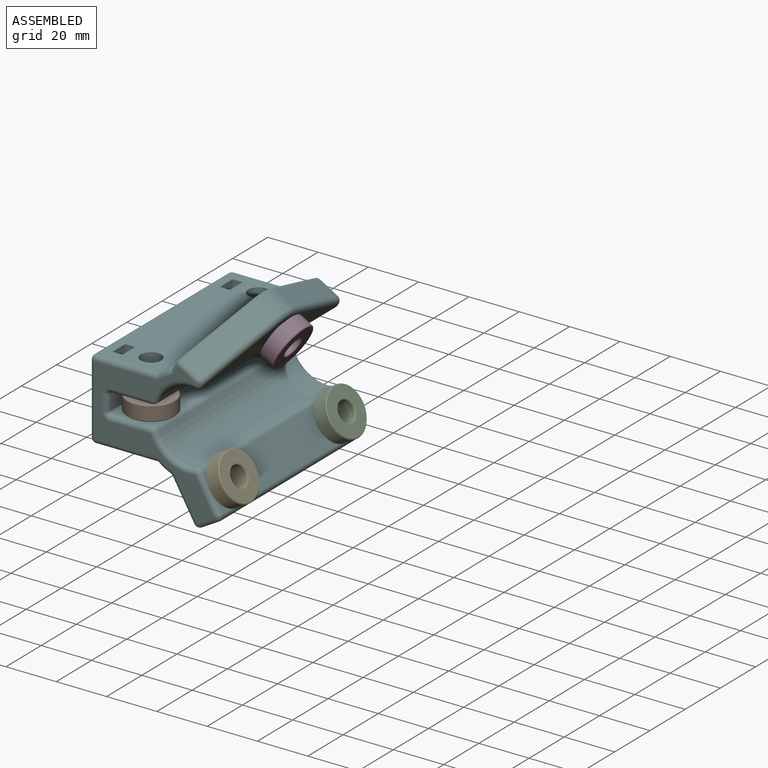
[diagram: assembled view]
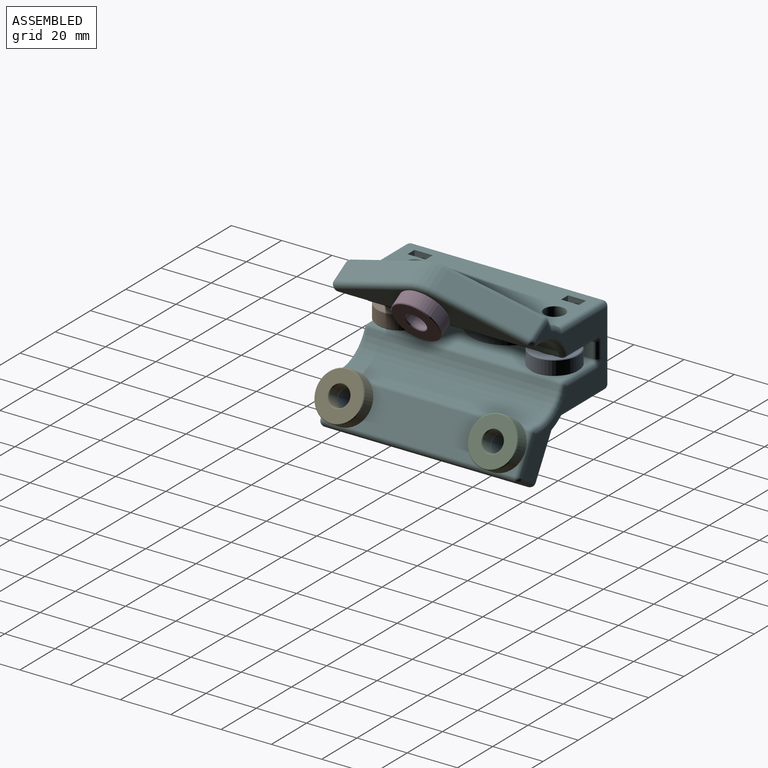
[diagram: assembled view, second angle]
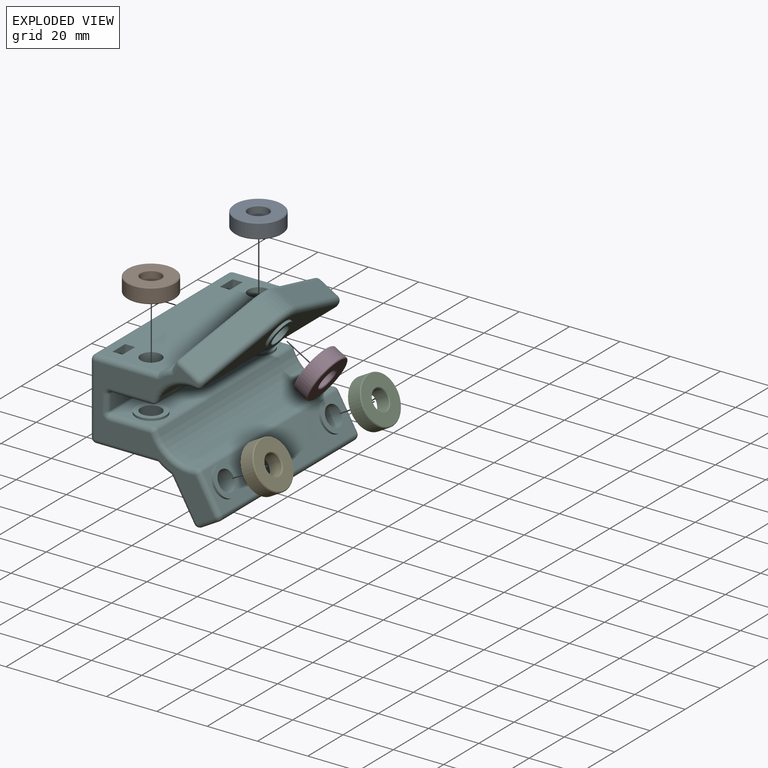
[diagram: exploded view]
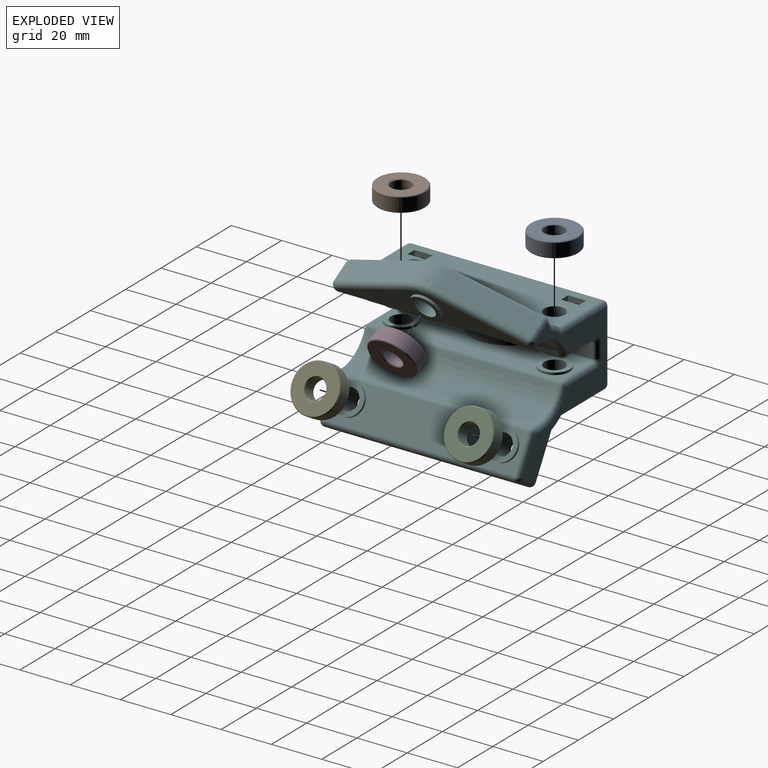
[diagram: exploded view, second angle]
ASSEMBLY  parts=6 mates=5
PART A: 8 faces, bbox 19x19x6 mm
  f0: cylinder r=4mm len=8mm, axis (0,0,-1), area 135.7mm2, adj f4,f6
  f1: cylinder r=9.5mm len=19mm, axis (0,0,-1), area 322.3mm2, adj f5,f7
  f2: plane 18.4x18.4mm, normal (0,0,1), area 207.8mm2, adj f6,f7
  f3: plane 18.4x18.4mm, normal (0,0,-1), area 207.8mm2, adj f4,f5
  f4: cone r=4.3mm half-angle=45deg, axis (0,0,-1), area 11.1mm2, adj f0,f3
  f5: cone r=9.5mm half-angle=45deg, axis (0,0,1), area 24.9mm2, adj f1,f3
  f6: cone r=4mm half-angle=45deg, axis (0,0,1), area 11.1mm2, adj f0,f2
  f7: cone r=9.2mm half-angle=45deg, axis (0,0,-1), area 24.9mm2, adj f1,f2
PART B: same geometry as A
PART C: same geometry as A
PART D: same geometry as A
PART E: same geometry as A
PART F: 155 faces, bbox 70.9x80x51.6 mm
  f0: plane 54.37x47.54mm, normal (0,1,0), area 620.3mm2, adj f104,f108,f112,f114,f115,f117,f118,f119
  f1: plane 54.37x47.54mm, normal (0,-1,0), area 620.3mm2, adj f83,f84,f86,f87,f88,f89,f90,f91
  f2: plane 76x28mm, normal (0,0,1), area 2071.7mm2, adj f67,f68,f73,f74,f97,f124,f144,f147
  f3: plane 76x24.66mm, normal (-1,0,0), area 1710.7mm2, adj f14,f24,f25,f55,f56,f57,f58,f60
  f4: plane 76x24.71mm, normal (1,0,0), area 1714.8mm2, adj f13,f22,f23,f45,f46,f47,f48,f50
  f5: plane 24.58x6mm, normal (0,0,-1), area 147.5mm2, adj f6,f31,f32,f88
  f6: cylinder r=1mm len=25.13mm, axis (0,-1,0), area 38.9mm2, adj f5,f8,f32,f90
  f7: cylinder r=1mm len=25.13mm, axis (0,1,0), area 38.9mm2, adj f9,f17,f32,f119
  f8: plane 76x16.13mm, normal (1,0,0), area 866.6mm2, adj f6,f27,f30,f32,f41,f43,f92,f112
  f9: plane 76x16.13mm, normal (-1,0,0), area 866.6mm2, adj f7,f28,f31,f32,f37,f39,f84,f121
  f10: plane 76x15.34mm, normal (-0.5,0,0.87), area 1240.4mm2, adj f14,f20,f21,f105,f113,f118
  f11: plane 76x13.11mm, normal (0.5,0,-0.87), area 924.3mm2, adj f26,f33,f35,f100,f107,f108
  f12: plane 76x14.41mm, normal (0.5,0,0.87), area 734.6mm2, adj f13,f77,f91,f130,f134,f135,f136
  f13: cylinder r=20.5mm len=76mm, axis (0,1,0), area 472.9mm2, adj f4,f12,f93,f128
  f14: cylinder r=20.5mm len=76mm, axis (0,1,0), area 472.9mm2, adj f3,f10,f101,f120
  f15: plane 76x6.93mm, normal (-0.87,0,-0.5), area 608mm2, adj f106,f107,f113,f114
  f16: cylinder r=14.5mm len=76mm, axis (0,1,0), area 1486.2mm2, adj f26,f27,f96,f104
  f17: plane 24.58x6mm, normal (0,0,-1), area 147.5mm2, adj f7,f30,f32,f117
  f18: cylinder r=14.5mm len=76mm, axis (0,1,0), area 1489.3mm2, adj f28,f29,f83,f125
  f19: plane 76x12.21mm, normal (-0.5,0,-0.87), area 481.5mm2, adj f29,f78,f87,f129,f139,f140,f141
  f20: cylinder r=4.1mm len=15.36mm, axis (-0.5,0,0.87), area 334.9mm2, adj f10,f36
  f21: cylinder r=4.1mm len=15.36mm, axis (-0.5,0,0.87), area 334.9mm2, adj f10,f34
  f22: cylinder r=4.1mm len=12.85mm, axis (1,0,0), area 331mm2, adj f4,f40
  f23: cylinder r=4.1mm len=12.85mm, axis (1,0,0), area 331mm2, adj f4,f38
  f24: cylinder r=4.1mm len=12.85mm, axis (1,0,0), area 331mm2, adj f3,f44
  f25: cylinder r=4.1mm len=12.85mm, axis (1,0,0), area 331mm2, adj f3,f42
  f26: cylinder r=2mm len=76mm, axis (0,1,0), area 182mm2, adj f11,f16,f98,f103
  f27: cylinder r=2mm len=76mm, axis (0,1,0), area 182.2mm2, adj f8,f16,f94,f109
  f28: cylinder r=2mm len=76mm, axis (0,1,0), area 182.2mm2, adj f9,f18,f82,f123
  f29: cylinder r=2mm len=76mm, axis (0,1,0), area 182.4mm2, adj f18,f19,f85,f127
  f30: cylinder r=1mm len=25.13mm, axis (0,-1,0), area 38.9mm2, adj f8,f17,f32,f115
  f31: cylinder r=1mm len=25.13mm, axis (0,1,0), area 38.9mm2, adj f5,f9,f32,f86
  f32: cylinder r=15mm len=26.84mm, axis (1,0,0), area 264.9mm2, adj f5,f6,f7,f8,f9,f17,f30,f31
  f33: cylinder r=6mm len=12mm, axis (-0.5,0,0.87), area 37.7mm2, adj f11,f34
  f34: plane 12x10.39mm, normal (0.5,0,-0.87), area 60.3mm2, adj f21,f33
  f35: cylinder r=6mm len=12mm, axis (-0.5,0,0.87), area 37.7mm2, adj f11,f36
  f36: plane 12x10.39mm, normal (0.5,0,-0.87), area 60.3mm2, adj f20,f35
  f37: cylinder r=6mm len=12mm, axis (1,0,0), area 31.2mm2, adj f9,f38
  f38: plane 12x12mm, normal (-1,0,0), area 60.3mm2, adj f23,f37
  f39: cylinder r=6mm len=12mm, axis (1,0,0), area 31.2mm2, adj f9,f40
  f40: plane 12x12mm, normal (-1,0,0), area 60.3mm2, adj f22,f39
  f41: cylinder r=6mm len=12mm, axis (-1,0,0), area 32.9mm2, adj f8,f42
  f42: plane 12x12mm, normal (1,0,0), area 60.3mm2, adj f25,f41
  f43: cylinder r=6mm len=12mm, axis (-1,0,0), area 32.9mm2, adj f8,f44
  f44: plane 12x12mm, normal (1,0,0), area 60.3mm2, adj f24,f43
  f45: plane 8x4mm, normal (0,1,0), area 32mm2, adj f4,f46,f48,f49
  f46: plane 8x7.2mm, normal (0,0,1), area 43.4mm2, adj f4,f45,f47,f49,f75
  f47: plane 8x4mm, normal (0,-1,0), area 32mm2, adj f4,f46,f48,f49
  f48: plane 8x7.2mm, normal (0,0,-1), area 43.4mm2, adj f4,f45,f47,f49,f74
  f49: plane 7.2x4mm, normal (1,0,0), area 28.8mm2, adj f45,f46,f47,f48
  f50: plane 8x7.2mm, normal (0,0,-1), area 43.4mm2, adj f4,f51,f53,f54,f73
  f51: plane 8x4mm, normal (0,1,0), area 32mm2, adj f4,f50,f52,f54
  f52: plane 8x7.2mm, normal (0,0,1), area 43.4mm2, adj f4,f51,f53,f54,f72
  f53: plane 8x4mm, normal (0,-1,0), area 32mm2, adj f4,f50,f52,f54
  f54: plane 7.2x4mm, normal (1,0,0), area 28.8mm2, adj f50,f51,f52,f53
  f55: plane 8x7.2mm, normal (0,0,1), area 43.4mm2, adj f3,f56,f58,f59,f69
  f56: plane 8x4mm, normal (0,1,0), area 32mm2, adj f3,f55,f57,f59
  f57: plane 8x7.2mm, normal (0,0,-1), area 43.4mm2, adj f3,f56,f58,f59,f68
  f58: plane 8x4mm, normal (0,-1,0), area 32mm2, adj f3,f55,f57,f59
  f59: plane 7.2x4mm, normal (-1,0,0), area 28.8mm2, adj f55,f56,f57,f58
  f60: plane 8x7.2mm, normal (0,0,-1), area 43.4mm2, adj f3,f61,f63,f64,f67
  f61: plane 8x4mm, normal (0,-1,0), area 32mm2, adj f3,f60,f62,f64
  f62: plane 8x7.2mm, normal (0,0,1), area 43.4mm2, adj f3,f61,f63,f64,f66
  f63: plane 8x4mm, normal (0,1,0), area 32mm2, adj f3,f60,f62,f64
  f64: plane 7.2x4mm, normal (-1,0,0), area 28.8mm2, adj f60,f61,f62,f63
  f65: plane 4.25x4.25mm, normal (0,0,1), area 14.2mm2, adj f66
  f66: cylinder r=2.12mm len=4.25mm, axis (0,0,1), area 53.4mm2, adj f62,f65
  f67: cylinder r=2.12mm len=5mm, axis (0,0,1), area 66.8mm2, adj f2,f60,f147
  f68: cylinder r=2.12mm len=5mm, axis (0,0,1), area 66.8mm2, adj f2,f57,f147
  f69: cylinder r=2.12mm len=4.25mm, axis (0,0,1), area 53.4mm2, adj f55,f70
  f70: plane 4.25x4.25mm, normal (0,0,1), area 14.2mm2, adj f69
  f71: plane 4.25x4.25mm, normal (0,0,1), area 14.2mm2, adj f72
  f72: cylinder r=2.12mm len=4.25mm, axis (0,0,1), area 53.4mm2, adj f52,f71
  f73: cylinder r=2.12mm len=5mm, axis (0,0,1), area 66.8mm2, adj f2,f50,f144
  f74: cylinder r=2.12mm len=5mm, axis (0,0,1), area 66.8mm2, adj f2,f48,f144
  f75: cylinder r=2.12mm len=4.25mm, axis (0,0,1), area 53.4mm2, adj f46,f76
  f76: plane 4.25x4.25mm, normal (0,0,1), area 14.2mm2, adj f75
  f77: cylinder r=4.1mm len=15.36mm, axis (0.5,0,0.87), area 334.9mm2, adj f12,f79
  f78: cylinder r=6mm len=12mm, axis (0.5,0,0.87), area 37.7mm2, adj f19,f79
  f79: plane 12x10.39mm, normal (-0.5,0,-0.87), area 60.3mm2, adj f77,f78
  f80: plane 33.44x14.86mm, normal (0.81,-0.35,-0.47), area 285.7mm2, adj f89,f132,f134,f139
  f81: plane 33.44x14.86mm, normal (0.81,0.35,-0.47), area 285.7mm2, adj f131,f132,f136,f141
  f82: sphere r=2mm, area 4.8mm2, adj f28,f83,f84
  f83: torus R=16.5mm, axis (0,-1,0), area 64.6mm2, adj f1,f18,f82,f85
  f84: cylinder r=2mm len=16.13mm, axis (0,0,1), area 50.7mm2, adj f1,f9,f82,f86
  f85: sphere r=2mm, area 4.8mm2, adj f29,f83,f87
  f86: torus R=3mm, axis (0,-1,0), area 8.5mm2, adj f1,f31,f84,f88
  f87: cylinder r=2mm len=2.1mm, axis (-0.87,0,0.5), area 2.3mm2, adj f1,f19,f85,f138
  f88: cylinder r=2mm len=6mm, axis (-1,0,0), area 18.8mm2, adj f1,f5,f86,f90
  f89: cylinder r=2mm len=7.86mm, axis (-0.5,0,-0.87), area 19.4mm2, adj f1,f80,f133,f138
  f90: torus R=3mm, axis (0,-1,0), area 8.5mm2, adj f1,f6,f88,f92
  f91: cylinder r=2mm len=4.46mm, axis (0.87,0,-0.5), area 11.1mm2, adj f1,f12,f93,f133
  f92: cylinder r=2mm len=16.13mm, axis (0,0,-1), area 50.7mm2, adj f1,f8,f90,f94
  f93: torus R=18.5mm, axis (0,-1,0), area 20.4mm2, adj f1,f13,f91,f95
  f94: sphere r=2mm, area 4.8mm2, adj f27,f92,f96
  f95: cylinder r=2mm len=25.43mm, axis (0,0,-1), area 78.4mm2, adj f1,f4,f93,f145
  f96: torus R=16.5mm, axis (0,-1,0), area 64.5mm2, adj f1,f16,f94,f98
  f97: cylinder r=2mm len=28mm, axis (1,0,0), area 88mm2, adj f1,f2,f145,f148
  f98: sphere r=2mm, area 4.8mm2, adj f26,f96,f100
  f99: cylinder r=2mm len=25.38mm, axis (0,0,1), area 78.3mm2, adj f1,f3,f101,f148
  f100: cylinder r=2mm len=14.11mm, axis (-0.87,0,-0.5), area 47.6mm2, adj f1,f11,f98,f102
  f101: torus R=18.5mm, axis (0,-1,0), area 20.4mm2, adj f1,f14,f99,f105
  f102: sphere r=2mm, area 6.3mm2, adj f100,f106,f107
  f103: sphere r=2mm, area 4.8mm2, adj f26,f104,f108
  f104: torus R=16.5mm, axis (0,-1,0), area 64.5mm2, adj f0,f16,f103,f109
  f105: cylinder r=2mm len=16.96mm, axis (0.87,0,0.5), area 56.5mm2, adj f1,f10,f101,f110
  f106: cylinder r=2mm len=7.93mm, axis (-0.5,0,0.87), area 25.1mm2, adj f1,f15,f102,f110
  f107: cylinder r=2mm len=76mm, axis (0,1,0), area 238.8mm2, adj f11,f15,f102,f111
  f108: cylinder r=2mm len=14.11mm, axis (0.87,0,0.5), area 47.6mm2, adj f0,f11,f103,f111
  f109: sphere r=2mm, area 4.8mm2, adj f27,f104,f112
  f110: sphere r=2mm, area 6.3mm2, adj f105,f106,f113
  f111: sphere r=2mm, area 6.3mm2, adj f107,f108,f114
  f112: cylinder r=2mm len=16.13mm, axis (0,0,1), area 50.7mm2, adj f0,f8,f109,f115
  f113: cylinder r=2mm len=76mm, axis (0,1,0), area 238.8mm2, adj f10,f15,f110,f116
  f114: cylinder r=2mm len=7.93mm, axis (0.5,0,-0.87), area 25.1mm2, adj f0,f15,f111,f116
  f115: torus R=3mm, axis (0,-1,0), area 8.5mm2, adj f0,f30,f112,f117
  f116: sphere r=2mm, area 6.3mm2, adj f113,f114,f118
  f117: cylinder r=2mm len=6mm, axis (1,0,0), area 18.8mm2, adj f0,f17,f115,f119
  f118: cylinder r=2mm len=16.96mm, axis (-0.87,0,-0.5), area 56.5mm2, adj f0,f10,f116,f120
  f119: torus R=3mm, axis (0,-1,0), area 8.5mm2, adj f0,f7,f117,f121
  f120: torus R=18.5mm, axis (0,-1,0), area 20.4mm2, adj f0,f14,f118,f122
  f121: cylinder r=2mm len=16.13mm, axis (0,0,-1), area 50.7mm2, adj f0,f9,f119,f123
  f122: cylinder r=2mm len=25.38mm, axis (0,0,-1), area 78.3mm2, adj f0,f3,f120,f146
  f123: sphere r=2mm, area 4.8mm2, adj f28,f121,f125
  f124: cylinder r=2mm len=28mm, axis (-1,0,0), area 88mm2, adj f0,f2,f143,f146
  f125: torus R=16.5mm, axis (0,-1,0), area 64.6mm2, adj f0,f18,f123,f127
  f126: cylinder r=2mm len=25.43mm, axis (0,0,1), area 78.4mm2, adj f0,f4,f128,f143
  f127: sphere r=2mm, area 4.8mm2, adj f29,f125,f129
  f128: torus R=18.5mm, axis (0,-1,0), area 20.4mm2, adj f0,f13,f126,f130
  f129: cylinder r=2mm len=2.1mm, axis (0.87,0,-0.5), area 2.3mm2, adj f0,f19,f127,f142
  f130: cylinder r=2mm len=4.46mm, axis (-0.87,0,0.5), area 11.1mm2, adj f0,f12,f128,f137
  f131: cylinder r=2mm len=7.86mm, axis (0.5,0,0.87), area 19.4mm2, adj f0,f81,f137,f142
  f132: cylinder r=15mm len=10.53mm, axis (0.5,0,0.87), area 86.1mm2, adj f80,f81,f135,f140
  f133: sphere r=2mm, area 4.8mm2, adj f89,f91,f134
  f134: cylinder r=2mm len=34.14mm, axis (0.3,0.94,-0.18), area 112.2mm2, adj f12,f80,f133,f135
  f135: torus R=13mm, axis (0.5,0,0.87), area 32.2mm2, adj f12,f132,f134,f136
  f136: cylinder r=2mm len=34.14mm, axis (-0.3,0.94,0.18), area 112.2mm2, adj f12,f81,f135,f137
  f137: sphere r=2mm, area 4.8mm2, adj f130,f131,f136
  f138: sphere r=2mm, area 4.8mm2, adj f87,f89,f139
  f139: cylinder r=2mm len=34.14mm, axis (-0.3,-0.94,0.18), area 112.2mm2, adj f19,f80,f138,f140
  f140: torus R=13mm, axis (0.5,0,0.87), area 32.2mm2, adj f19,f132,f139,f141
  f141: cylinder r=2mm len=34.14mm, axis (0.3,-0.94,-0.18), area 112.2mm2, adj f19,f81,f140,f142
  f142: sphere r=2mm, area 4.8mm2, adj f129,f131,f141
  f143: sphere r=2mm, area 6.3mm2, adj f124,f126,f144
  f144: cylinder r=2mm len=76mm, axis (0,1,0), area 238.5mm2, adj f2,f4,f73,f74,f143,f145
  f145: sphere r=2mm, area 6.3mm2, adj f95,f97,f144
  f146: sphere r=2mm, area 6.3mm2, adj f122,f124,f147
  f147: cylinder r=2mm len=76mm, axis (0,1,0), area 238.5mm2, adj f2,f3,f67,f68,f146,f148
  f148: sphere r=2mm, area 6.3mm2, adj f97,f99,f147
  f149: cylinder r=12.5mm len=21.11mm, axis (1,0,0), area 200mm2, adj f150,f151,f152,f153,f154
  f150: cylinder r=1mm len=21.11mm, axis (0,1,0), area 32.4mm2, adj f149,f152,f153
  f151: cylinder r=1mm len=21.11mm, axis (0,-1,0), area 32.4mm2, adj f149,f152,f154
  f152: plane 21.11x6mm, normal (0,0,-1), area 126.6mm2, adj f149,f150,f151
  f153: plane 19.7x4.8mm, normal (-1,0,0), area 66mm2, adj f149,f150
  f154: plane 19.7x4.8mm, normal (1,0,0), area 66mm2, adj f149,f151
PLACE A t=(-12.51,69.79,-5.54)mm
PLACE B t=(-12.51,8.79,-5.54)mm
PLACE C rot(axis=(0,-1,0),120deg) t=(22.62,69.79,-20.01)mm
PLACE D rot(axis=(0,-1,0),60deg) t=(22.68,39.29,14.62)mm
PLACE E rot(axis=(0,-1,0),120deg) t=(22.62,8.79,-20.01)mm
PLACE F rot(axis=(0,-1,0),90deg) t=(37.72,39.29,-67.6)mm
MATE fastened F.f22 <-> A.f0  axis (0,0,-1) through (-12.51,69.79,0.46)mm
MATE fastened F.f23 <-> B.f1  axis (0,0,-1) through (-12.51,8.79,0.46)mm
MATE fastened F.f21 <-> C.f1  axis (0.87,0,0.5) through (17.42,69.79,-23.01)mm
MATE fastened F.f77 <-> D.f1  axis (0.87,0,-0.5) through (17.49,39.29,17.62)mm
MATE fastened F.f20 <-> E.f0  axis (0.87,0,0.5) through (17.42,8.79,-23.01)mm
